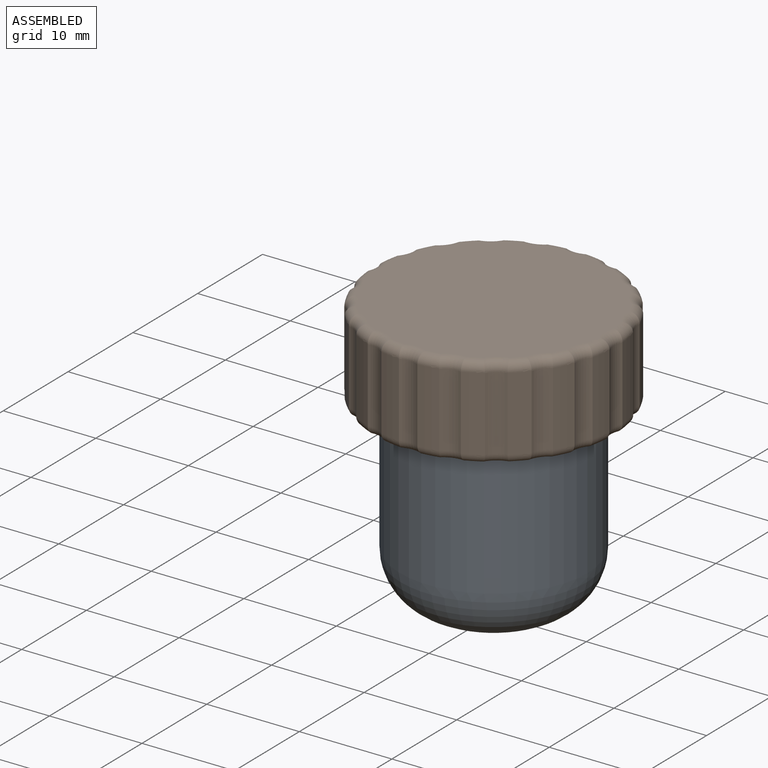
[diagram: assembled view]
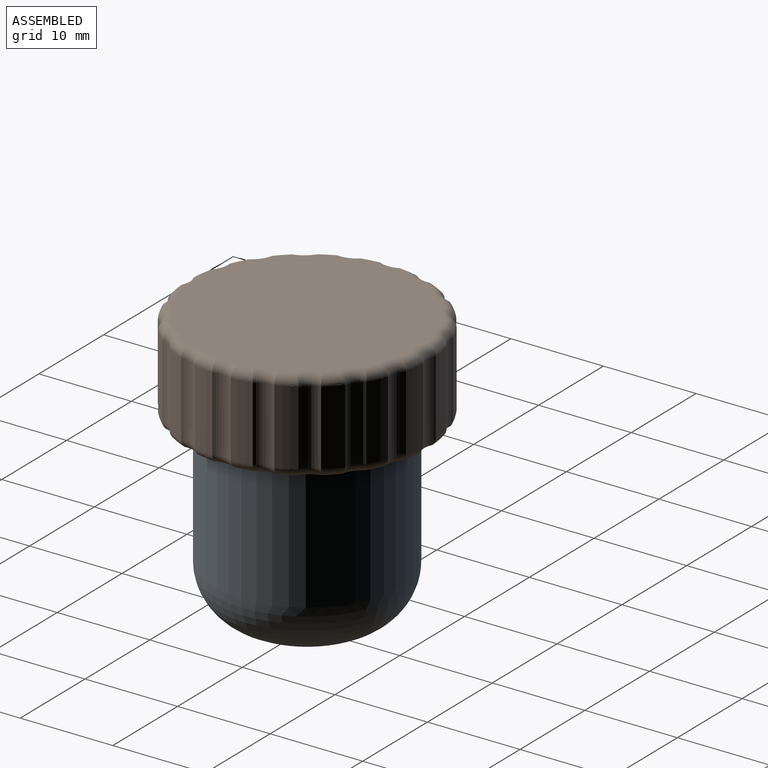
[diagram: assembled view, second angle]
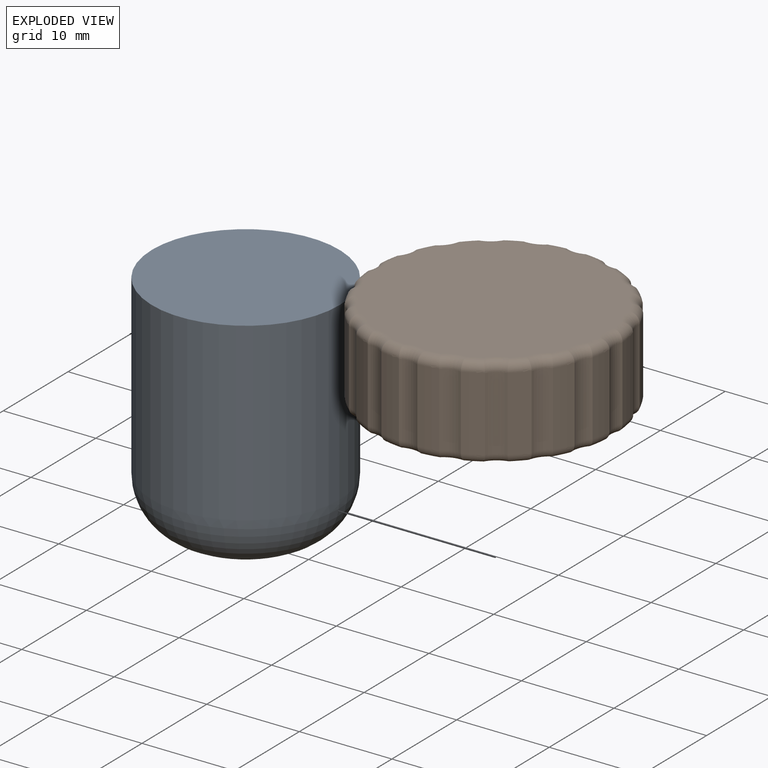
[diagram: exploded view]
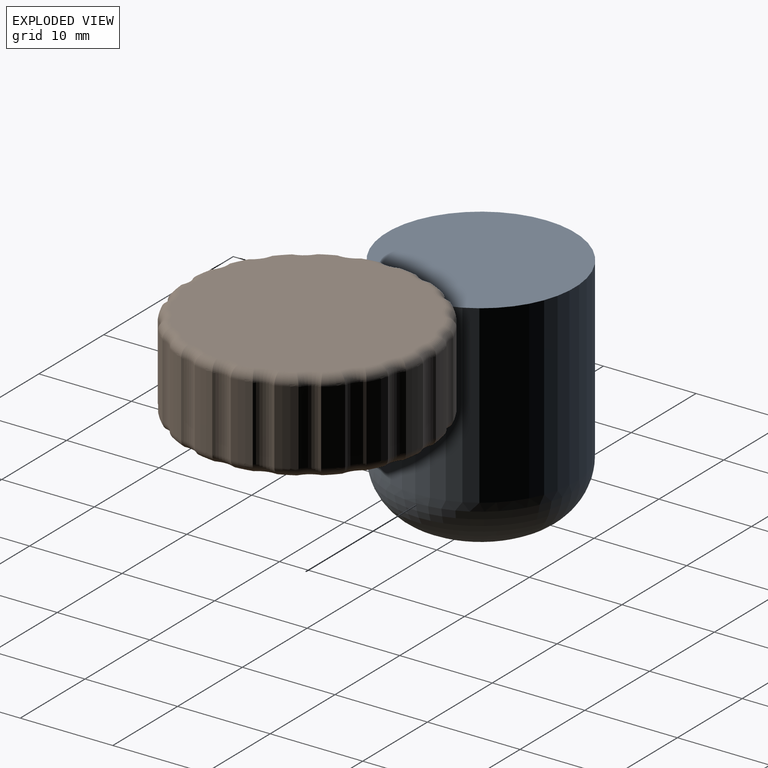
[diagram: exploded view, second angle]
ASSEMBLY  parts=2 mates=2
PART A: 4 faces, bbox 20.3x20.3x25 mm
  f0: cylinder r=10.12mm len=20.25mm, axis (0,0,1), area 1208.7mm2, adj f1,f3
  f1: plane 20.25x20.25mm, normal (0,0,1), area 322.1mm2, adj f0
  f2: plane 8.25x8.25mm, normal (0,0,-1), area 53.5mm2, adj f3
  f3: torus R=4.12mm, axis (0,0,1), area 470.5mm2, adj f0,f2
PART B: 124 faces, bbox 26.5x26.5x10 mm
  f0: cylinder r=13.25mm len=8mm, axis (0,0,1), area 17.3mm2, adj f40,f41,f81,f121
  f1: cylinder r=13.25mm len=8mm, axis (0,0,1), area 17.3mm2, adj f39,f40,f78,f118
  f2: cylinder r=13.25mm len=8mm, axis (0,0,1), area 17.3mm2, adj f38,f39,f74,f114
  f3: cylinder r=13.25mm len=8mm, axis (0,0,1), area 17.3mm2, adj f37,f38,f70,f110
  f4: cylinder r=13.25mm len=8mm, axis (0,0,1), area 17.3mm2, adj f36,f37,f66,f106
  f5: cylinder r=13.25mm len=8mm, axis (0,0,1), area 17.3mm2, adj f35,f36,f62,f102
  f6: cylinder r=13.25mm len=8mm, axis (0,0,1), area 17.3mm2, adj f34,f35,f58,f98
  f7: cylinder r=13.25mm len=8mm, axis (0,0,1), area 17.3mm2, adj f33,f34,f54,f94
  f8: cylinder r=13.25mm len=8mm, axis (0,0,1), area 17.3mm2, adj f32,f33,f50,f90
  f9: cylinder r=13.25mm len=8mm, axis (0,0,1), area 17.3mm2, adj f31,f32,f46,f86
  f10: cylinder r=13.25mm len=8mm, axis (0,0,1), area 17.3mm2, adj f30,f31,f42,f82
  f11: cylinder r=13.25mm len=8mm, axis (0,0,1), area 17.3mm2, adj f29,f30,f45,f85
  f12: cylinder r=13.25mm len=8mm, axis (0,0,1), area 17.3mm2, adj f28,f29,f49,f89
  f13: cylinder r=13.25mm len=8mm, axis (0,0,1), area 17.3mm2, adj f27,f28,f53,f93
  f14: cylinder r=13.25mm len=8mm, axis (0,0,1), area 17.3mm2, adj f26,f27,f57,f97
  f15: cylinder r=13.25mm len=8mm, axis (0,0,1), area 17.3mm2, adj f25,f26,f61,f101
  f16: cylinder r=13.25mm len=8mm, axis (0,0,1), area 17.3mm2, adj f24,f25,f65,f105
  f17: cylinder r=13.25mm len=8mm, axis (0,0,1), area 17.3mm2, adj f23,f24,f69,f109
  f18: cylinder r=13.25mm len=8mm, axis (0,0,1), area 17.3mm2, adj f22,f23,f73,f113
  f19: cylinder r=13.25mm len=8mm, axis (0,0,1), area 17.3mm2, adj f22,f41,f77,f117
  f20: plane 24.39x24.39mm, normal (0,0,-1), area 132.9mm2, adj f42,f43,f44,f45,f46,f47,f48,f49
  f21: plane 24.39x24.39mm, normal (0,0,1), area 463mm2, adj f82,f83,f84,f85,f86,f87,f88,f89
  f22: cylinder r=2.27mm len=8mm, axis (0,0,1), area 16.6mm2, adj f18,f19,f75,f115
  f23: cylinder r=2.27mm len=8mm, axis (0,0,1), area 16.6mm2, adj f17,f18,f71,f111
  f24: cylinder r=2.27mm len=8mm, axis (0,0,1), area 16.6mm2, adj f16,f17,f67,f107
  f25: cylinder r=2.27mm len=8mm, axis (0,0,1), area 16.6mm2, adj f15,f16,f63,f103
  f26: cylinder r=2.27mm len=8mm, axis (0,0,1), area 16.6mm2, adj f14,f15,f59,f99
  f27: cylinder r=2.27mm len=8mm, axis (0,0,1), area 16.6mm2, adj f13,f14,f55,f95
  f28: cylinder r=2.27mm len=8mm, axis (0,0,1), area 16.6mm2, adj f12,f13,f51,f91
  f29: cylinder r=2.27mm len=8mm, axis (0,0,1), area 16.6mm2, adj f11,f12,f47,f87
  f30: cylinder r=2.27mm len=8mm, axis (0,0,1), area 16.6mm2, adj f10,f11,f43,f83
  f31: cylinder r=2.27mm len=8mm, axis (0,0,1), area 16.6mm2, adj f9,f10,f44,f84
  f32: cylinder r=2.27mm len=8mm, axis (0,0,1), area 16.6mm2, adj f8,f9,f48,f88
  f33: cylinder r=2.27mm len=8mm, axis (0,0,1), area 16.6mm2, adj f7,f8,f52,f92
  f34: cylinder r=2.27mm len=8mm, axis (0,0,1), area 16.6mm2, adj f6,f7,f56,f96
  f35: cylinder r=2.27mm len=8mm, axis (0,0,1), area 16.6mm2, adj f5,f6,f60,f100
  f36: cylinder r=2.27mm len=8mm, axis (0,0,1), area 16.6mm2, adj f4,f5,f64,f104
  f37: cylinder r=2.27mm len=8mm, axis (0,0,1), area 16.6mm2, adj f3,f4,f68,f108
  f38: cylinder r=2.27mm len=8mm, axis (0,0,1), area 16.6mm2, adj f2,f3,f72,f112
  f39: cylinder r=2.27mm len=8mm, axis (0,0,1), area 16.6mm2, adj f1,f2,f76,f116
  f40: cylinder r=2.27mm len=8mm, axis (0,0,1), area 16.6mm2, adj f0,f1,f80,f120
  f41: cylinder r=2.27mm len=8mm, axis (0,0,1), area 16.6mm2, adj f0,f19,f79,f119
  f42: torus R=12.25mm, axis (0,0,1), area 3mm2, adj f10,f20,f43,f44
  f43: torus R=3.27mm, axis (0,0,1), area 3.4mm2, adj f20,f30,f42,f45
  f44: torus R=3.27mm, axis (0,0,1), area 3.4mm2, adj f20,f31,f42,f46
  f45: torus R=12.25mm, axis (0,0,1), area 3mm2, adj f11,f20,f43,f47
  f46: torus R=12.25mm, axis (0,0,1), area 3mm2, adj f9,f20,f44,f48
  f47: torus R=3.27mm, axis (0,0,1), area 3.4mm2, adj f20,f29,f45,f49
  f48: torus R=3.27mm, axis (0,0,1), area 3.4mm2, adj f20,f32,f46,f50
  f49: torus R=12.25mm, axis (0,0,1), area 3mm2, adj f12,f20,f47,f51
  f50: torus R=12.25mm, axis (0,0,1), area 3mm2, adj f8,f20,f48,f52
  f51: torus R=3.27mm, axis (0,0,1), area 3.4mm2, adj f20,f28,f49,f53
  f52: torus R=3.27mm, axis (0,0,1), area 3.4mm2, adj f20,f33,f50,f54
  f53: torus R=12.25mm, axis (0,0,1), area 3mm2, adj f13,f20,f51,f55
  f54: torus R=12.25mm, axis (0,0,1), area 3mm2, adj f7,f20,f52,f56
  f55: torus R=3.27mm, axis (0,0,1), area 3.4mm2, adj f20,f27,f53,f57
  f56: torus R=3.27mm, axis (0,0,1), area 3.4mm2, adj f20,f34,f54,f58
  f57: torus R=12.25mm, axis (0,0,1), area 3mm2, adj f14,f20,f55,f59
  f58: torus R=12.25mm, axis (0,0,1), area 3mm2, adj f6,f20,f56,f60
  f59: torus R=3.27mm, axis (0,0,1), area 3.4mm2, adj f20,f26,f57,f61
  f60: torus R=3.27mm, axis (0,0,1), area 3.4mm2, adj f20,f35,f58,f62
  f61: torus R=12.25mm, axis (0,0,1), area 3mm2, adj f15,f20,f59,f63
  f62: torus R=12.25mm, axis (0,0,1), area 3mm2, adj f5,f20,f60,f64
  f63: torus R=3.27mm, axis (0,0,1), area 3.4mm2, adj f20,f25,f61,f65
  f64: torus R=3.27mm, axis (0,0,1), area 3.4mm2, adj f20,f36,f62,f66
  f65: torus R=12.25mm, axis (0,0,1), area 3mm2, adj f16,f20,f63,f67
  f66: torus R=12.25mm, axis (0,0,1), area 3mm2, adj f4,f20,f64,f68
  f67: torus R=3.27mm, axis (0,0,1), area 3.4mm2, adj f20,f24,f65,f69
  f68: torus R=3.27mm, axis (0,0,1), area 3.4mm2, adj f20,f37,f66,f70
  f69: torus R=12.25mm, axis (0,0,1), area 3mm2, adj f17,f20,f67,f71
  f70: torus R=12.25mm, axis (0,0,1), area 3mm2, adj f3,f20,f68,f72
  f71: torus R=3.27mm, axis (0,0,1), area 3.4mm2, adj f20,f23,f69,f73
  f72: torus R=3.27mm, axis (0,0,1), area 3.4mm2, adj f20,f38,f70,f74
  f73: torus R=12.25mm, axis (0,0,1), area 3mm2, adj f18,f20,f71,f75
  f74: torus R=12.25mm, axis (0,0,1), area 3mm2, adj f2,f20,f72,f76
  f75: torus R=3.27mm, axis (0,0,1), area 3.4mm2, adj f20,f22,f73,f77
  f76: torus R=3.27mm, axis (0,0,1), area 3.4mm2, adj f20,f39,f74,f78
  f77: torus R=12.25mm, axis (0,0,1), area 3mm2, adj f19,f20,f75,f79
  f78: torus R=12.25mm, axis (0,0,1), area 3mm2, adj f1,f20,f76,f80
  f79: torus R=3.27mm, axis (0,0,1), area 3.4mm2, adj f20,f41,f77,f81
  f80: torus R=3.27mm, axis (0,0,1), area 3.4mm2, adj f20,f40,f78,f81
  f81: torus R=12.25mm, axis (0,0,1), area 3mm2, adj f0,f20,f79,f80
  f82: torus R=12.25mm, axis (0,0,1), area 3mm2, adj f10,f21,f83,f84
  f83: torus R=3.27mm, axis (0,0,1), area 3.4mm2, adj f21,f30,f82,f85
  f84: torus R=3.27mm, axis (0,0,1), area 3.4mm2, adj f21,f31,f82,f86
  f85: torus R=12.25mm, axis (0,0,1), area 3mm2, adj f11,f21,f83,f87
  f86: torus R=12.25mm, axis (0,0,1), area 3mm2, adj f9,f21,f84,f88
  f87: torus R=3.27mm, axis (0,0,1), area 3.4mm2, adj f21,f29,f85,f89
  f88: torus R=3.27mm, axis (0,0,1), area 3.4mm2, adj f21,f32,f86,f90
  f89: torus R=12.25mm, axis (0,0,1), area 3mm2, adj f12,f21,f87,f91
  f90: torus R=12.25mm, axis (0,0,1), area 3mm2, adj f8,f21,f88,f92
  f91: torus R=3.27mm, axis (0,0,1), area 3.4mm2, adj f21,f28,f89,f93
  f92: torus R=3.27mm, axis (0,0,1), area 3.4mm2, adj f21,f33,f90,f94
  f93: torus R=12.25mm, axis (0,0,1), area 3mm2, adj f13,f21,f91,f95
  f94: torus R=12.25mm, axis (0,0,1), area 3mm2, adj f7,f21,f92,f96
  f95: torus R=3.27mm, axis (0,0,1), area 3.4mm2, adj f21,f27,f93,f97
  f96: torus R=3.27mm, axis (0,0,1), area 3.4mm2, adj f21,f34,f94,f98
  f97: torus R=12.25mm, axis (0,0,1), area 3mm2, adj f14,f21,f95,f99
  f98: torus R=12.25mm, axis (0,0,1), area 3mm2, adj f6,f21,f96,f100
  f99: torus R=3.27mm, axis (0,0,1), area 3.4mm2, adj f21,f26,f97,f101
  f100: torus R=3.27mm, axis (0,0,1), area 3.4mm2, adj f21,f35,f98,f102
  f101: torus R=12.25mm, axis (0,0,1), area 3mm2, adj f15,f21,f99,f103
  f102: torus R=12.25mm, axis (0,0,1), area 3mm2, adj f5,f21,f100,f104
  f103: torus R=3.27mm, axis (0,0,1), area 3.4mm2, adj f21,f25,f101,f105
  f104: torus R=3.27mm, axis (0,0,1), area 3.4mm2, adj f21,f36,f102,f106
  f105: torus R=12.25mm, axis (0,0,1), area 3mm2, adj f16,f21,f103,f107
  f106: torus R=12.25mm, axis (0,0,1), area 3mm2, adj f4,f21,f104,f108
  f107: torus R=3.27mm, axis (0,0,1), area 3.4mm2, adj f21,f24,f105,f109
  f108: torus R=3.27mm, axis (0,0,1), area 3.4mm2, adj f21,f37,f106,f110
  f109: torus R=12.25mm, axis (0,0,1), area 3mm2, adj f17,f21,f107,f111
  f110: torus R=12.25mm, axis (0,0,1), area 3mm2, adj f3,f21,f108,f112
  f111: torus R=3.27mm, axis (0,0,1), area 3.4mm2, adj f21,f23,f109,f113
  f112: torus R=3.27mm, axis (0,0,1), area 3.4mm2, adj f21,f38,f110,f114
  f113: torus R=12.25mm, axis (0,0,1), area 3mm2, adj f18,f21,f111,f115
  f114: torus R=12.25mm, axis (0,0,1), area 3mm2, adj f2,f21,f112,f116
  f115: torus R=3.27mm, axis (0,0,1), area 3.4mm2, adj f21,f22,f113,f117
  f116: torus R=3.27mm, axis (0,0,1), area 3.4mm2, adj f21,f39,f114,f118
  f117: torus R=12.25mm, axis (0,0,1), area 3mm2, adj f19,f21,f115,f119
  f118: torus R=12.25mm, axis (0,0,1), area 3mm2, adj f1,f21,f116,f120
  f119: torus R=3.27mm, axis (0,0,1), area 3.4mm2, adj f21,f41,f117,f121
  f120: torus R=3.27mm, axis (0,0,1), area 3.4mm2, adj f21,f40,f118,f121
  f121: torus R=12.25mm, axis (0,0,1), area 3mm2, adj f0,f21,f119,f120
  f122: cylinder r=10.25mm len=20.5mm, axis (0,0,-1), area 322mm2, adj f20,f123
  f123: plane 20.5x20.5mm, normal (0,0,-1), area 330.1mm2, adj f122
PLACE A t=(0,0,-17.5)mm
PLACE B t=(0,0,12.5)mm fixed
MATE planar B.f122 <-> A.f0  axis (0,0,-1) through (0,0,7.5)mm
MATE slider A.f0 <-> B.f122  axis (0,0,1) through (0,0,-11.5)mm
